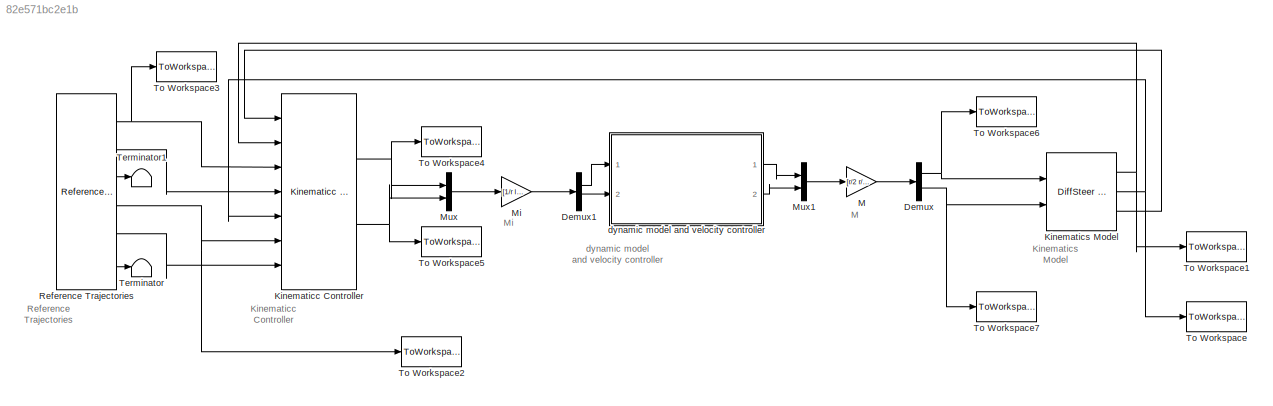
MODEL slx_82e571bc2e1b
KIND model
CONFIG AbsTol = auto
CONFIG EnableMultiTasking = off
CONFIG FixedStep = auto
CONFIG MaxStep = auto
CONFIG MinStep = auto
CONFIG RelTol = 1e-3
CONFIG SampleTimeConstraint = Unconstrained
CONFIG Solver = VariableStepAuto
CONFIG SolverName = VariableStepAuto
CONFIG StartTime = 0.0
CONFIG StopTime = 10.0
BLOCK [Reference]  Kinematics Model  REF=DiffSteer_model/DiffSteer
Kinematics
  Ports = [2, 3]
  SourceBlock = DiffSteer_model/DiffSteer\nKinematics
BLOCK [Demux] Demux
  DisplayOption = bar
  Outputs = 2
  Ports = [1, 2]
BLOCK [Demux] Demux1
  DisplayOption = bar
  Outputs = 2
  Ports = [1, 2]
BLOCK [Reference] Kinematicc Controller  REF=Controllers/Kinematicc
Controller
  Ports = [7, 2]
  SourceBlock = Controllers/Kinematicc\nController
  SourceType = Kinematic Controller
BLOCK [Gain] M
  Gain = [r/2 r/2;r/l -r/l]
  Multiplication = Matrix(K*u)
  OutDataTypeStr = Inherit: Inherit via internal rule
  ParamDataTypeStr = Inherit: Inherit via internal rule
  SaturateOnIntegerOverflow = off
BLOCK [Gain] Mi
  Gain = [1/r  l/(2*r); 1/r  -l/(2*r)]
  Multiplication = Matrix(K*u)
  OutDataTypeStr = Inherit: Inherit via internal rule
  ParamDataTypeStr = Inherit: Inherit via internal rule
  SaturateOnIntegerOverflow = off
BLOCK [Mux] Mux
  DisplayOption = bar
  Inputs = 2
  Ports = [2, 1]
BLOCK [Mux] Mux1
  DisplayOption = bar
  Inputs = 2
  Ports = [2, 1]
BLOCK [Reference] Reference Trajectories  REF=Controllers/Reference
Trajectories
  Ports = [0, 6]
  SourceBlock = Controllers/Reference\nTrajectories
  SourceType = Reference Trajectories
BLOCK [Terminator] Terminator
BLOCK [Terminator] Terminator1
BLOCK [ToWorkspace] To Workspace
  MaxDataPoints = inf
  Ports = [1]
  SampleTime = -1
  VariableName = y
BLOCK [ToWorkspace] To Workspace1
  MaxDataPoints = inf
  Ports = [1]
  SampleTime = -1
  VariableName = x
BLOCK [ToWorkspace] To Workspace2
  MaxDataPoints = inf
  Ports = [1]
  SampleTime = -1
  VariableName = yd
BLOCK [ToWorkspace] To Workspace3
  MaxDataPoints = inf
  Ports = [1]
  SampleTime = -1
  VariableName = xd
BLOCK [ToWorkspace] To Workspace4
  MaxDataPoints = inf
  Ports = [1]
  SampleTime = -1
  VariableName = vd
BLOCK [ToWorkspace] To Workspace5
  MaxDataPoints = inf
  Ports = [1]
  SampleTime = -1
  VariableName = wd
BLOCK [ToWorkspace] To Workspace6
  MaxDataPoints = inf
  Ports = [1]
  SampleTime = -1
  VariableName = v
BLOCK [ToWorkspace] To Workspace7
  MaxDataPoints = inf
  Ports = [1]
  SampleTime = -1
  VariableName = w
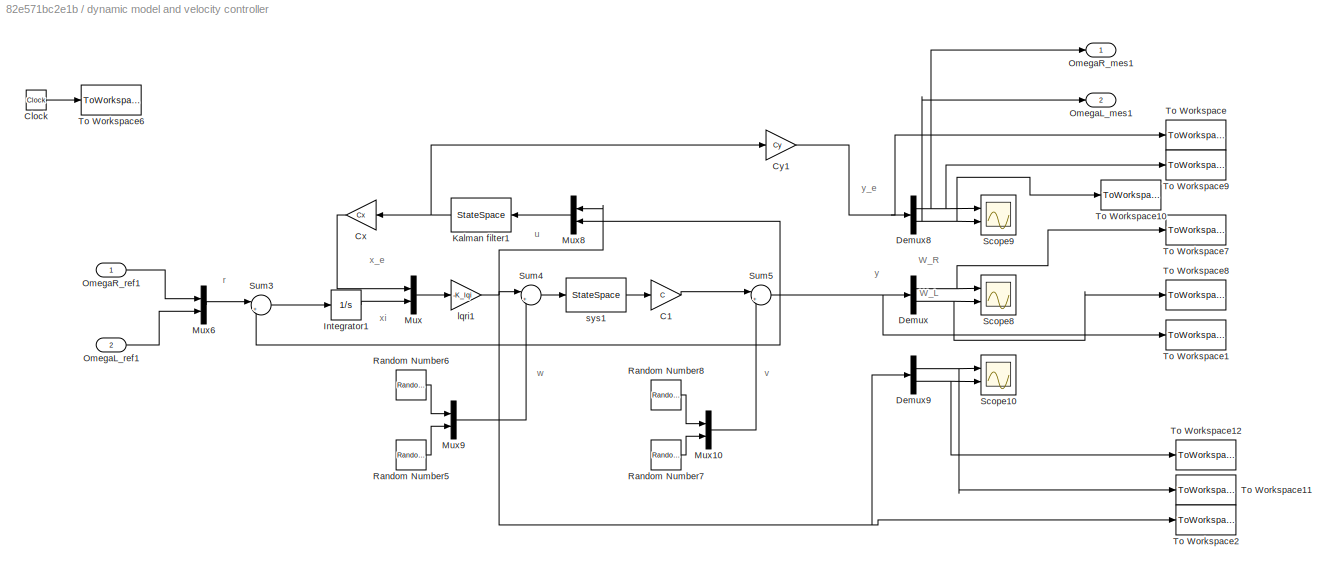
BLOCK [SubSystem] dynamic model and velocity controller
  Ports = [2, 2]
  RequestExecContextInheritance = off
  Variant = off
BLOCK [Gain] dynamic model and velocity controller/  Cx
  Gain = Cx
  Multiplication = Matrix(K*u)
  OutDataTypeStr = Inherit: Inherit via internal rule
  ParamDataTypeStr = Inherit: Inherit via internal rule
  SaturateOnIntegerOverflow = off
BLOCK [Gain] dynamic model and velocity controller/C1
  Gain = C
  Multiplication = Matrix(K*u)
  OutDataTypeStr = Inherit: Inherit via internal rule
  ParamDataTypeStr = Inherit: Inherit via internal rule
  SaturateOnIntegerOverflow = off
BLOCK [Clock] dynamic model and velocity controller/Clock
BLOCK [Gain] dynamic model and velocity controller/Cy1
  Gain = Cy
  Multiplication = Matrix(K*u)
  OutDataTypeStr = Inherit: Inherit via internal rule
  ParamDataTypeStr = Inherit: Inherit via internal rule
  SaturateOnIntegerOverflow = off
BLOCK [Demux] dynamic model and velocity controller/Demux
  DisplayOption = bar
  Outputs = 2
  Ports = [1, 2]
BLOCK [Demux] dynamic model and velocity controller/Demux8
  DisplayOption = bar
  Outputs = 2
  Ports = [1, 2]
BLOCK [Demux] dynamic model and velocity controller/Demux9
  DisplayOption = bar
  Outputs = 2
  Ports = [1, 2]
BLOCK [Integrator] dynamic model and velocity controller/Integrator1
  Ports = [1, 1]
BLOCK [StateSpace] dynamic model and velocity controller/Kalman filter1
  A = An
  B = Bn
  C = Cn
  D = Dn
  Ports = [1, 1]
  X0 = 0
BLOCK [Mux] dynamic model and velocity controller/Mux
  DisplayOption = bar
  Inputs = 2
  Ports = [2, 1]
BLOCK [Mux] dynamic model and velocity controller/Mux10
  DisplayOption = bar
  Inputs = 2
  Ports = [2, 1]
BLOCK [Mux] dynamic model and velocity controller/Mux6
  DisplayOption = bar
  Inputs = 2
  Ports = [2, 1]
BLOCK [Mux] dynamic model and velocity controller/Mux8
  DisplayOption = bar
  Inputs = 2
  Ports = [2, 1]
BLOCK [Mux] dynamic model and velocity controller/Mux9
  DisplayOption = bar
  Inputs = 2
  Ports = [2, 1]
BLOCK [Outport] dynamic model and velocity controller/OmegaL_mes1
  IconDisplay = Port number
  Port = 2
BLOCK [Inport] dynamic model and velocity controller/OmegaL_ref1
  IconDisplay = Port number
  Port = 2
BLOCK [Outport] dynamic model and velocity controller/OmegaR_mes1
  IconDisplay = Port number
BLOCK [Inport] dynamic model and velocity controller/OmegaR_ref1
  IconDisplay = Port number
BLOCK [RandomNumber] dynamic model and velocity controller/Random Number5
  SampleTime = 0.01
  Seed = 40
  Variance = 0.1
BLOCK [RandomNumber] dynamic model and velocity controller/Random Number6
  SampleTime = 0.01
  Seed = 25
  Variance = 0.1
BLOCK [RandomNumber] dynamic model and velocity controller/Random Number7
  SampleTime = 0.01
  Seed = 30
  Variance = 0.1
BLOCK [RandomNumber] dynamic model and velocity controller/Random Number8
  SampleTime = 0.01
  Seed = 20
  Variance = 0.1
BLOCK [Scope] dynamic model and velocity controller/Scope10
  NumInputPorts = 2
  Ports = [2]
  ScopeSpecificationString = Simulink.scopes.TimeScopeBlockCfg('CurrentConfiguration', extmgr.ConfigurationSet(extmgr.Configuration('Core','General UI',true),extmgr.Configuration('Core','Source UI',true),extmgr.Configuration('Sources','WiredSimulink',true,'DataLoggingVariableName','ScopeData1'),extmgr.Configuration('Visuals','Time Domain',true,'SerializedDisplays',{struct('MinYLimReal','-1.51293','MaxYLimReal','12.1534','YLab...<+1405ch>
BLOCK [Scope] dynamic model and velocity controller/Scope8
  NumInputPorts = 2
  Ports = [2]
  ScopeSpecificationString = Simulink.scopes.TimeScopeBlockCfg('CurrentConfiguration', extmgr.ConfigurationSet(extmgr.Configuration('Core','General UI',true),extmgr.Configuration('Core','Source UI',true),extmgr.Configuration('Sources','WiredSimulink',true,'DataLoggingVariableName','ScopeData3'),extmgr.Configuration('Visuals','Time Domain',true,'SerializedDisplays',{struct('MinYLimReal','-1.86597','MaxYLimReal','9.21468','YLab...<+1428ch>
BLOCK [Scope] dynamic model and velocity controller/Scope9
  NumInputPorts = 2
  Ports = [2]
  ScopeSpecificationString = Simulink.scopes.TimeScopeBlockCfg('CurrentConfiguration', extmgr.ConfigurationSet(extmgr.Configuration('Core','General UI',true),extmgr.Configuration('Core','Source UI',true),extmgr.Configuration('Sources','WiredSimulink',true,'DataLoggingVariableName','ScopeData4'),extmgr.Configuration('Visuals','Time Domain',true,'SerializedDisplays',{struct('MinYLimReal','-0.89347','MaxYLimReal','8.03281','YLab...<+1405ch>
BLOCK [Sum] dynamic model and velocity controller/Sum3
  IconShape = round
  InputSameDT = off
  Inputs = |+-
  OutDataTypeStr = Inherit: Inherit via internal rule
  Ports = [2, 1]
  SaturateOnIntegerOverflow = off
BLOCK [Sum] dynamic model and velocity controller/Sum4
  IconShape = round
  InputSameDT = off
  Inputs = |++
  OutDataTypeStr = Inherit: Inherit via internal rule
  Ports = [2, 1]
  SaturateOnIntegerOverflow = off
BLOCK [Sum] dynamic model and velocity controller/Sum5
  IconShape = round
  InputSameDT = off
  Inputs = |++
  OutDataTypeStr = Inherit: Inherit via internal rule
  Ports = [2, 1]
  SaturateOnIntegerOverflow = off
BLOCK [ToWorkspace] dynamic model and velocity controller/To Workspace
  FixptAsFi = on
  MaxDataPoints = inf
  Ports = [1]
  SampleTime = -1
  Save2DSignal = 3-D array (concatenate along third dimension)
  VariableName = ye
BLOCK [ToWorkspace] dynamic model and velocity controller/To Workspace1
  FixptAsFi = on
  MaxDataPoints = inf
  Ports = [1]
  SampleTime = -1
  Save2DSignal = 3-D array (concatenate along third dimension)
  VariableName = y3
BLOCK [ToWorkspace] dynamic model and velocity controller/To Workspace10
  FixptAsFi = on
  MaxDataPoints = inf
  Ports = [1]
  SampleTime = -1
  Save2DSignal = 3-D array (concatenate along third dimension)
  VariableName = ye2
BLOCK [ToWorkspace] dynamic model and velocity controller/To Workspace11
  FixptAsFi = on
  MaxDataPoints = inf
  Ports = [1]
  SampleTime = -1
  Save2DSignal = 3-D array (concatenate along third dimension)
  VariableName = u1
BLOCK [ToWorkspace] dynamic model and velocity controller/To Workspace12
  FixptAsFi = on
  MaxDataPoints = inf
  Ports = [1]
  SampleTime = -1
  Save2DSignal = 3-D array (concatenate along third dimension)
  VariableName = u2
BLOCK [ToWorkspace] dynamic model and velocity controller/To Workspace2
  FixptAsFi = on
  MaxDataPoints = inf
  Ports = [1]
  SampleTime = -1
  Save2DSignal = 3-D array (concatenate along third dimension)
  VariableName = u3
BLOCK [ToWorkspace] dynamic model and velocity controller/To Workspace6
  FixptAsFi = on
  MaxDataPoints = inf
  Ports = [1]
  SampleTime = -1
  Save2DSignal = 3-D array (concatenate along third dimension)
  VariableName = t
BLOCK [ToWorkspace] dynamic model and velocity controller/To Workspace7
  FixptAsFi = on
  MaxDataPoints = inf
  Ports = [1]
  SampleTime = -1
  Save2DSignal = 3-D array (concatenate along third dimension)
  VariableName = y1
BLOCK [ToWorkspace] dynamic model and velocity controller/To Workspace8
  FixptAsFi = on
  MaxDataPoints = inf
  Ports = [1]
  SampleTime = -1
  Save2DSignal = 3-D array (concatenate along third dimension)
  VariableName = y2
BLOCK [ToWorkspace] dynamic model and velocity controller/To Workspace9
  FixptAsFi = on
  MaxDataPoints = inf
  Ports = [1]
  SampleTime = -1
  Save2DSignal = 3-D array (concatenate along third dimension)
  VariableName = ye1
BLOCK [Gain] dynamic model and velocity controller/lqri1
  Gain = -K_lqi
  Multiplication = Matrix(K*u)
  OutDataTypeStr = Inherit: Inherit via internal rule
  ParamDataTypeStr = Inherit: Inherit via internal rule
  SaturateOnIntegerOverflow = off
BLOCK [StateSpace] dynamic model and velocity controller/sys1
  A = A
  B = B
  C = eye(4)
  D = zeros(4,2)
  Ports = [1, 1]
  X0 = 0
ANNOTATION (root): Kinematicc Controller
ANNOTATION (root): dynamic model and velocity controller
ANNOTATION (root): Kinematics Model
ANNOTATION (root): M
ANNOTATION (root): Mi
ANNOTATION (root): Reference Trajectories
ANNOTATION dynamic model and velocity controller: W_L
ANNOTATION dynamic model and velocity controller: W_R
ANNOTATION dynamic model and velocity controller: r
ANNOTATION dynamic model and velocity controller: u
ANNOTATION dynamic model and velocity controller: v
ANNOTATION dynamic model and velocity controller: w
ANNOTATION dynamic model and velocity controller: x_e
ANNOTATION dynamic model and velocity controller: xi
ANNOTATION dynamic model and velocity controller: y
ANNOTATION dynamic model and velocity controller: y_e
NET  Kinematics Model:1 -> Kinematicc Controller:2, To Workspace1:1
NET  Kinematics Model:2 -> Kinematicc Controller:5, To Workspace:1
LINE  Kinematics Model:3 -> Kinematicc Controller:1
LINE Demux1:1 -> dynamic model and velocity controller:1
LINE Demux1:2 -> dynamic model and velocity controller:2
NET Demux:1 ->  Kinematics Model:1, To Workspace6:1
NET Demux:2 ->  Kinematics Model:2, To Workspace7:1
NET Kinematicc Controller:1 -> Mux:1, To Workspace4:1
NET Kinematicc Controller:2 -> Mux:2, To Workspace5:1
LINE M:1 -> Demux:1
LINE Mi:1 -> Demux1:1
LINE Mux1:1 -> M:1
LINE Mux:1 -> Mi:1
NET Reference Trajectories:1 -> Kinematicc Controller:3, To Workspace3:1
LINE Reference Trajectories:2 -> Kinematicc Controller:4
LINE Reference Trajectories:3 -> Terminator1:1
NET Reference Trajectories:4 -> Kinematicc Controller:6, To Workspace2:1
LINE Reference Trajectories:5 -> Kinematicc Controller:7
LINE Reference Trajectories:6 -> Terminator:1
LINE dynamic model and velocity controller/  Cx:1 -> dynamic model and velocity controller/Mux:1
LINE dynamic model and velocity controller/C1:1 -> dynamic model and velocity controller/Sum5:1
LINE dynamic model and velocity controller/Clock:1 -> dynamic model and velocity controller/To Workspace6:1
NET dynamic model and velocity controller/Cy1:1 -> dynamic model and velocity controller/Demux8:1, dynamic model and velocity controller/To Workspace:1
NET dynamic model and velocity controller/Demux8:1 -> dynamic model and velocity controller/OmegaR_mes1:1, dynamic model and velocity controller/Scope9:1, dynamic model and velocity controller/To Workspace9:1
NET dynamic model and velocity controller/Demux8:2 -> dynamic model and velocity controller/OmegaL_mes1:1, dynamic model and velocity controller/Scope9:2, dynamic model and velocity controller/To Workspace10:1
NET dynamic model and velocity controller/Demux9:1 -> dynamic model and velocity controller/Scope10:1, dynamic model and velocity controller/To Workspace11:1
NET dynamic model and velocity controller/Demux9:2 -> dynamic model and velocity controller/Scope10:2, dynamic model and velocity controller/To Workspace12:1
NET dynamic model and velocity controller/Demux:1 -> dynamic model and velocity controller/Scope8:1, dynamic model and velocity controller/To Workspace7:1
NET dynamic model and velocity controller/Demux:2 -> dynamic model and velocity controller/Scope8:2, dynamic model and velocity controller/To Workspace8:1
LINE dynamic model and velocity controller/Integrator1:1 -> dynamic model and velocity controller/Mux:2
NET dynamic model and velocity controller/Kalman filter1:1 -> dynamic model and velocity controller/  Cx:1, dynamic model and velocity controller/Cy1:1
LINE dynamic model and velocity controller/Mux10:1 -> dynamic model and velocity controller/Sum5:2
LINE dynamic model and velocity controller/Mux6:1 -> dynamic model and velocity controller/Sum3:1
LINE dynamic model and velocity controller/Mux8:1 -> dynamic model and velocity controller/Kalman filter1:1
LINE dynamic model and velocity controller/Mux9:1 -> dynamic model and velocity controller/Sum4:2
LINE dynamic model and velocity controller/Mux:1 -> dynamic model and velocity controller/lqri1:1
LINE dynamic model and velocity controller/OmegaL_ref1:1 -> dynamic model and velocity controller/Mux6:2
LINE dynamic model and velocity controller/OmegaR_ref1:1 -> dynamic model and velocity controller/Mux6:1
LINE dynamic model and velocity controller/Random Number5:1 -> dynamic model and velocity controller/Mux9:2
LINE dynamic model and velocity controller/Random Number6:1 -> dynamic model and velocity controller/Mux9:1
LINE dynamic model and velocity controller/Random Number7:1 -> dynamic model and velocity controller/Mux10:2
LINE dynamic model and velocity controller/Random Number8:1 -> dynamic model and velocity controller/Mux10:1
LINE dynamic model and velocity controller/Sum3:1 -> dynamic model and velocity controller/Integrator1:1
LINE dynamic model and velocity controller/Sum4:1 -> dynamic model and velocity controller/sys1:1
NET dynamic model and velocity controller/Sum5:1 -> dynamic model and velocity controller/Demux:1, dynamic model and velocity controller/Mux8:2, dynamic model and velocity controller/Sum3:2, dynamic model and velocity controller/To Workspace1:1
NET dynamic model and velocity controller/lqri1:1 -> dynamic model and velocity controller/Demux9:1, dynamic model and velocity controller/Mux8:1, dynamic model and velocity controller/Sum4:1, dynamic model and velocity controller/To Workspace2:1
LINE dynamic model and velocity controller/sys1:1 -> dynamic model and velocity controller/C1:1
LINE dynamic model and velocity controller:1 -> Mux1:1
LINE dynamic model and velocity controller:2 -> Mux1:2
note: NET lines group one-source signal fan-out (src -> all destinations, sorted); 1:1 wires keep LINE
